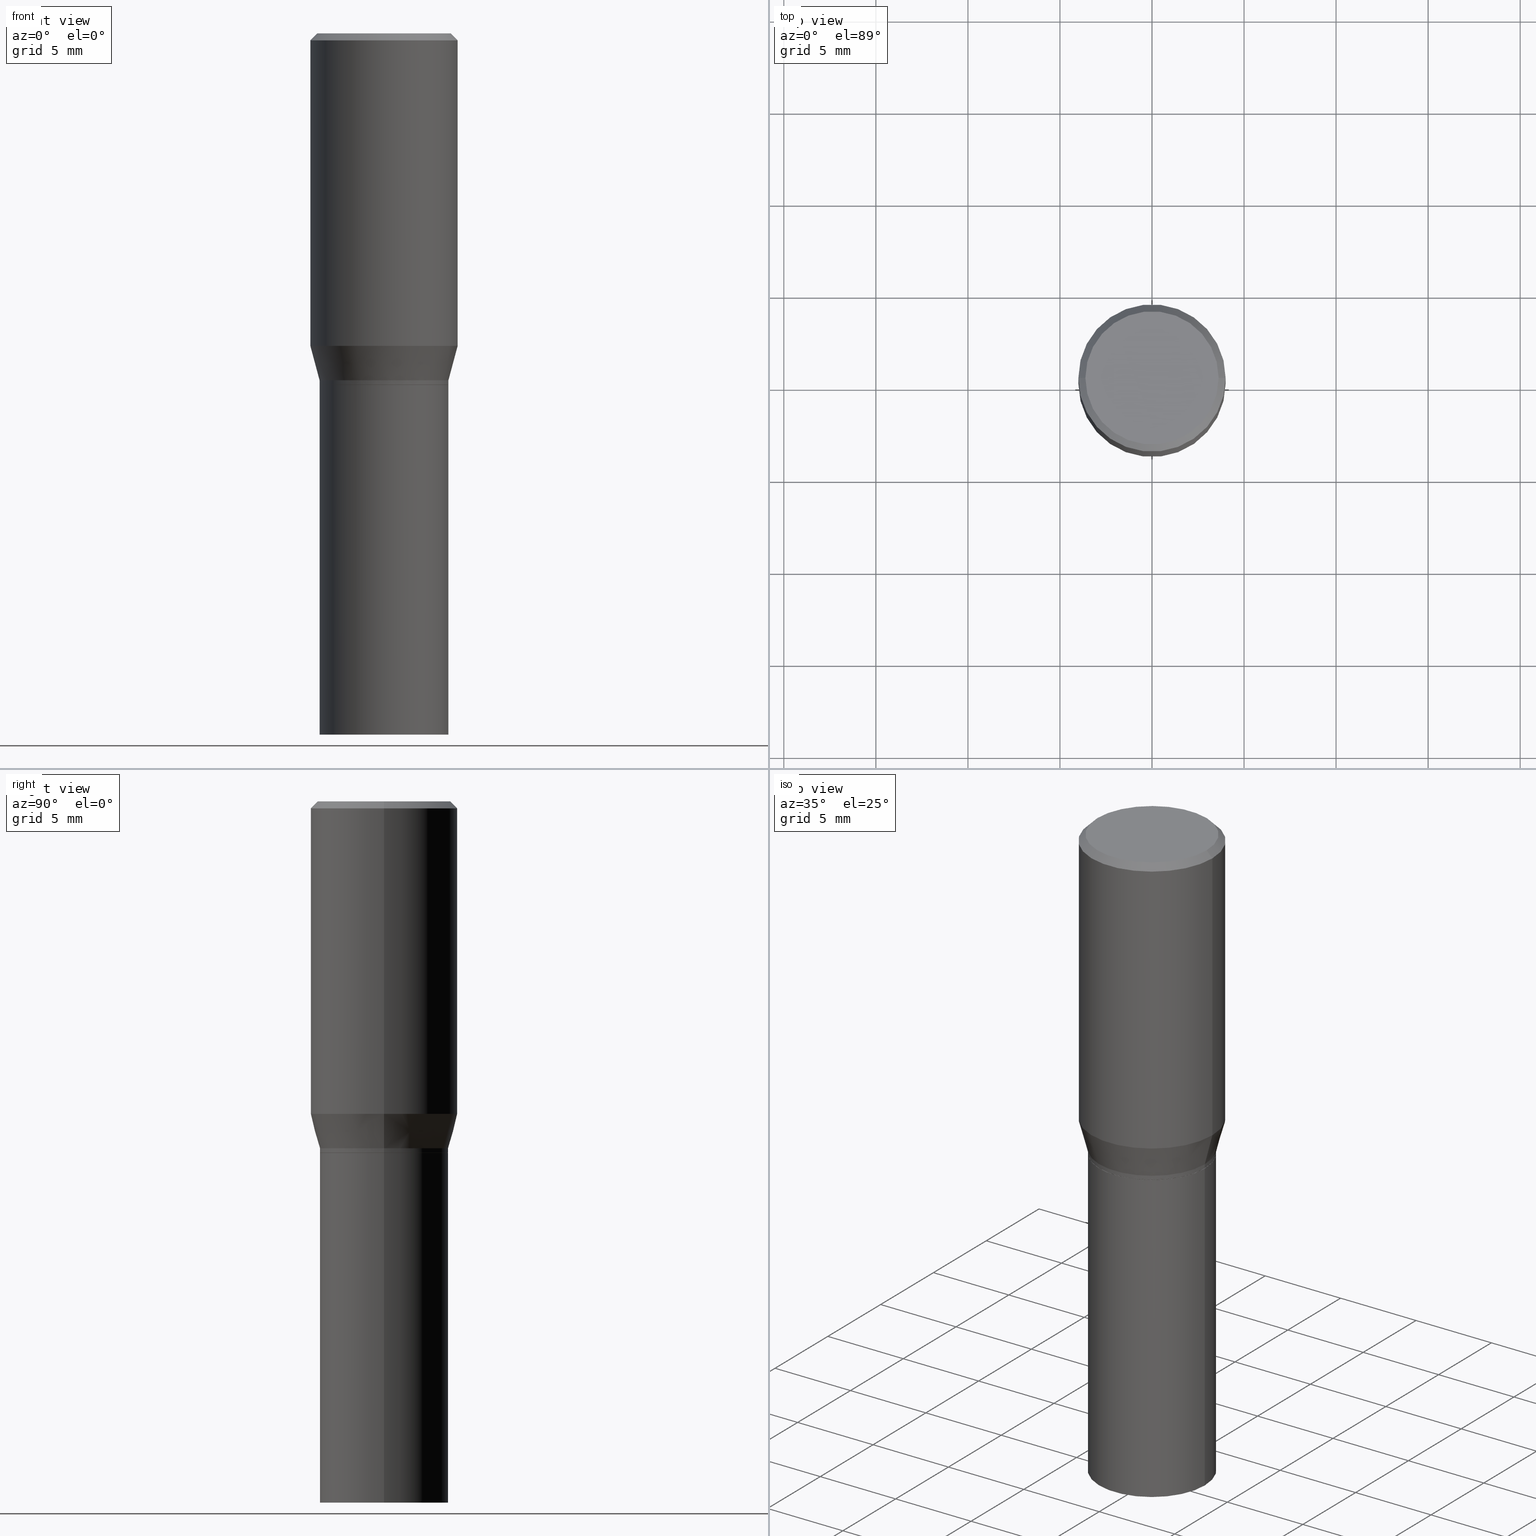
[diagram: canonical four-view strip — front | top / right | iso, engineering-drawing reading convention]
A machine part, canonical four-view strip (front | top / right | iso — engineering-drawing reading convention). The complete STEP part file that produces these views, byte-faithful:
ISO-10303-21;
HEADER;
FILE_DESCRIPTION (( 'STEP AP203' ),
    '1' );
FILE_NAME ('48681.STEP',
    '2024-03-12T19:43:24',
    ( '' ),
    ( '' ),
    'SwSTEP 2.0',
    'SolidWorks 2023',
    '' );
FILE_SCHEMA (( 'CONFIG_CONTROL_DESIGN' ));
ENDSEC;

DATA;
#1 = PERSON_AND_ORGANIZATION ( #353, #173 ) ;
#2 = CIRCLE ( 'NONE', #464, 0.1378000000000000058 ) ;
#3 = ADVANCED_FACE ( 'NONE', ( #329 ), #56, .T. ) ;
#4 = VERTEX_POINT ( 'NONE', #419 ) ;
#5 = APPROVAL ( #196, 'UNSPECIFIED' ) ;
#6 = PERSON_AND_ORGANIZATION ( #353, #173 ) ;
#7 = ORIENTED_EDGE ( 'NONE', *, *, #97, .F. ) ;
#8 = FACE_OUTER_BOUND ( 'NONE', #316, .T. ) ;
#9 = AXIS2_PLACEMENT_3D ( 'NONE', #370, #215, #11 ) ;
#10 = EDGE_LOOP ( 'NONE', ( #368, #25 ) ) ;
#11 = DIRECTION ( 'NONE',  ( 1.000000000000000000, -6.982962677686267499E-15, 0.000000000000000000 ) ) ;
#12 = CARTESIAN_POINT ( 'NONE',  ( 0.1373000000000000054, -3.584354742456369967E-15, -0.7520000000000001128 ) ) ;
#13 = CARTESIAN_POINT ( 'NONE',  ( 1.814537854189371548E-29, -2.590679153421614242E-15, -0.7420000000000002149 ) ) ;
#14 = CYLINDRICAL_SURFACE ( 'NONE', #99, 0.1378000000000000336 ) ;
#15 = CIRCLE ( 'NONE', #233, 0.1424999999999999878 ) ;
#16 = DIRECTION ( 'NONE',  ( 1.000000000000000000, -6.982962677686267499E-15, 0.000000000000000000 ) ) ;
#17 = LINE ( 'NONE', #144, #34 ) ;
#18 = APPLICATION_CONTEXT ( 'configuration controlled 3d designs of mechanical parts and assemblies' ) ;
#19 = CARTESIAN_POINT ( 'NONE',  ( 5.413510571379637089E-45, -7.729058366967027209E-31, -2.213690298435891099E-16 ) ) ;
#20 = ADVANCED_FACE ( 'NONE', ( #393 ), #272, .T. ) ;
#21 = EDGE_LOOP ( 'NONE', ( #191, #402, #170, #466 ) ) ;
#22 = ORIENTED_EDGE ( 'NONE', *, *, #423, .F. ) ;
#23 =( LENGTH_UNIT ( ) NAMED_UNIT ( * ) SI_UNIT ( $, .METRE. ) );
#24 = CARTESIAN_POINT ( 'NONE',  ( 1.837769807848130011E-29, -2.623848226140623599E-15, -0.7515000000000000568 ) ) ;
#25 = ORIENTED_EDGE ( 'NONE', *, *, #371, .T. ) ;
#26 = CONICAL_SURFACE ( 'NONE', #67, 0.1575000000000000011, 0.7853981633974554954 ) ;
#27 = CARTESIAN_POINT ( 'NONE',  ( -0.1373000000000000054, -1.650018790611428101E-15, -0.7520000000000001128 ) ) ;
#28 = ORIENTED_EDGE ( 'NONE', *, *, #205, .F. ) ;
#29 = DIRECTION ( 'NONE',  ( -2.438088387897960049E-29, 3.491481338843145188E-15, 1.000000000000000000 ) ) ;
#30 = CARTESIAN_POINT ( 'NONE',  ( 1.814537854189371548E-29, -2.590679153421614242E-15, -0.7420000000000002149 ) ) ;
#31 = CARTESIAN_POINT ( 'NONE',  ( 1.838992542251222813E-29, -2.625593966810045497E-15, -0.7520000000000001128 ) ) ;
#32 = EDGE_CURVE ( 'NONE', #444, #450, #200, .T. ) ;
#33 = DATE_TIME_ROLE ( 'classification_date' ) ;
#34 = VECTOR ( 'NONE', #110, 39.37007874015748143 ) ;
#35 = ORIENTED_EDGE ( 'NONE', *, *, #317, .F. ) ;
#36 = PERSON_AND_ORGANIZATION_ROLE ( 'creator' ) ;
#37 = EDGE_CURVE ( 'NONE', #195, #4, #193, .T. ) ;
#38 = APPROVAL_ROLE ( '' ) ;
#39 = VECTOR ( 'NONE', #163, 39.37007874015748143 ) ;
#40 = ORIENTED_EDGE ( 'NONE', *, *, #203, .F. ) ;
#41 = APPLICATION_CONTEXT ( 'configuration controlled 3d designs of mechanical parts and assemblies' ) ;
#42 = VERTEX_POINT ( 'NONE', #435 ) ;
#43 = LOCAL_TIME ( 15, 43, 24.00000000000000000, #275 ) ;
#44 = DESIGN_CONTEXT ( 'detailed design', #41, 'design' ) ;
#45 = EDGE_CURVE ( 'NONE', #4, #195, #256, .T. ) ;
#46 = DIRECTION ( 'NONE',  ( -0.2588190451025222938, 5.211531920934555775E-15, 0.9659258262890678681 ) ) ;
#47 = AXIS2_PLACEMENT_3D ( 'NONE', #263, #341, #420 ) ;
#48 = DIRECTION ( 'NONE',  ( -2.445468806185136597E-29, 3.491481338843145583E-15, 1.000000000000000000 ) ) ;
#49 = EDGE_LOOP ( 'NONE', ( #138, #103, #154, #280 ) ) ;
#50 = DIRECTION ( 'NONE',  ( 1.000000000000000000, -6.982962677686266711E-15, 0.000000000000000000 ) ) ;
#51 = DIRECTION ( 'NONE',  ( 1.000000000000000000, -6.982962677686267499E-15, 4.876176775795935793E-29 ) ) ;
#52 = CYLINDRICAL_SURFACE ( 'NONE', #391, 0.1378000000000000058 ) ;
#53 = EDGE_LOOP ( 'NONE', ( #381, #241 ) ) ;
#54 = DIRECTION ( 'NONE',  ( -2.445468806185136877E-29, 3.491481338843145188E-15, 1.000000000000000000 ) ) ;
#55 = ADVANCED_BREP_SHAPE_REPRESENTATION ( '48681', ( #448, #445, #165 ), #279 ) ;
#56 = CONICAL_SURFACE ( 'NONE', #114, 0.1377999999999999781, 0.2617993877991510177 ) ;
#57 = PLANE ( 'NONE',  #148 ) ;
#58 = ORIENTED_EDGE ( 'NONE', *, *, #228, .T. ) ;
#59 = CARTESIAN_POINT ( 'NONE',  ( 0.1378000000000000613, -3.586100483125791470E-15, -0.7515000000000000568 ) ) ;
#60 = CARTESIAN_POINT ( 'NONE',  ( -0.1378000000000000058, -2.952280097659963937E-15, -0.7520000000000001128 ) ) ;
#61 = DIRECTION ( 'NONE',  ( 1.000000000000000000, -6.982962677686267499E-15, 4.876176775795935793E-29 ) ) ;
#62 = DIRECTION ( 'NONE',  ( -2.445468806185136597E-29, 3.491481338843145583E-15, 1.000000000000000000 ) ) ;
#63 = EDGE_CURVE ( 'NONE', #100, #42, #442, .T. ) ;
#64 = COORDINATED_UNIVERSAL_TIME_OFFSET ( 5, 0, .BEHIND. ) ;
#65 = ORIENTED_EDGE ( 'NONE', *, *, #250, .F. ) ;
#66 = DATE_AND_TIME ( #348, #461 ) ;
#67 = AXIS2_PLACEMENT_3D ( 'NONE', #78, #75, #169 ) ;
#68 = PERSON_AND_ORGANIZATION ( #353, #173 ) ;
#69 = ADVANCED_FACE ( 'NONE', ( #453 ), #57, .F. ) ;
#70 = CARTESIAN_POINT ( 'NONE',  ( 0.000000000000000000, 0.000000000000000000, 0.000000000000000000 ) ) ;
#71 = ORIENTED_EDGE ( 'NONE', *, *, #37, .T. ) ;
#72 = EDGE_LOOP ( 'NONE', ( #327, #350, #79, #71 ) ) ;
#73 = ADVANCED_FACE ( 'NONE', ( #443 ), #52, .T. ) ;
#74 = DIRECTION ( 'NONE',  ( 1.000000000000000000, -6.982962677686265922E-15, 0.000000000000000000 ) ) ;
#75 = DIRECTION ( 'NONE',  ( 2.445468806185136597E-29, -3.491481338843145583E-15, -1.000000000000000000 ) ) ;
#76 = DIRECTION ( 'NONE',  ( -2.445468806185136877E-29, 3.491481338843145188E-15, 1.000000000000000000 ) ) ;
#77 = VECTOR ( 'NONE', #46, 39.37007874015748143 ) ;
#78 = CARTESIAN_POINT ( 'NONE',  ( 3.668203209277705088E-31, -5.237222008264718399E-17, -0.01499999999999999944 ) ) ;
#79 = ORIENTED_EDGE ( 'NONE', *, *, #266, .T. ) ;
#80 = DIRECTION ( 'NONE',  ( -0.7071067811865526798, 2.468850131082310309E-15, -0.7071067811865424657 ) ) ;
#81 = CIRCLE ( 'NONE', #237, 0.1424999999999999878 ) ;
#82 = CARTESIAN_POINT ( 'NONE',  ( 0.000000000000000000, 0.000000000000000000, 0.000000000000000000 ) ) ;
#83 = DIRECTION ( 'NONE',  ( 1.000000000000000000, -6.982962677686265922E-15, 0.000000000000000000 ) ) ;
#84 = ORIENTED_EDGE ( 'NONE', *, *, #45, .T. ) ;
#85 = VECTOR ( 'NONE', #188, 39.37007874015748143 ) ;
#86 = DIRECTION ( 'NONE',  ( 1.000000000000000000, -6.982962677686266711E-15, 4.874020801377837404E-29 ) ) ;
#87 = ORIENTED_EDGE ( 'NONE', *, *, #129, .T. ) ;
#88 = DIRECTION ( 'NONE',  ( 2.438088387897960049E-29, -3.491481338843145188E-15, -1.000000000000000000 ) ) ;
#89 = CYLINDRICAL_SURFACE ( 'NONE', #47, 0.1575000000000000289 ) ;
#90 = CARTESIAN_POINT ( 'NONE',  ( 1.814537854189371548E-29, -2.590679153421614242E-15, -0.7420000000000002149 ) ) ;
#91 = EDGE_CURVE ( 'NONE', #450, #444, #2, .T. ) ;
#92 = PERSON_AND_ORGANIZATION_ROLE ( 'design_owner' ) ;
#93 = DIRECTION ( 'NONE',  ( 0.000000000000000000, 0.000000000000000000, 1.000000000000000000 ) ) ;
#94 = AXIS2_PLACEMENT_3D ( 'NONE', #403, #253, #83 ) ;
#95 = PERSON_AND_ORGANIZATION ( #353, #173 ) ;
#96 = CIRCLE ( 'NONE', #160, 0.1373000000000000054 ) ;
#97 = EDGE_CURVE ( 'NONE', #450, #418, #149, .T. ) ;
#98 = EDGE_LOOP ( 'NONE', ( #440, #336, #135, #438 ) ) ;
#99 = AXIS2_PLACEMENT_3D ( 'NONE', #82, #407, #51 ) ;
#100 = VERTEX_POINT ( 'NONE', #178 ) ;
#101 = CARTESIAN_POINT ( 'NONE',  ( 3.668203209277705088E-31, -5.237222008264718399E-17, -0.01499999999999999944 ) ) ;
#102 = CARTESIAN_POINT ( 'NONE',  ( 0.000000000000000000, 0.000000000000000000, 0.000000000000000000 ) ) ;
#103 = ORIENTED_EDGE ( 'NONE', *, *, #423, .T. ) ;
#104 = ORIENTED_EDGE ( 'NONE', *, *, #32, .T. ) ;
#105 = CARTESIAN_POINT ( 'NONE',  ( -0.1575000000000000011, -7.407157829009734663E-17, -0.01499999999999999944 ) ) ;
#106 = CLOSED_SHELL ( 'NONE', ( #409, #364, #73, #145 ) ) ;
#107 = LINE ( 'NONE', #204, #288 ) ;
#108 = VECTOR ( 'NONE', #142, 39.37007874015748143 ) ;
#109 = CARTESIAN_POINT ( 'NONE',  ( -0.1377999999999999781, -1.413213504431950829E-15, -0.7420000000000002149 ) ) ;
#110 = DIRECTION ( 'NONE',  ( -2.445468806185136877E-29, 3.491481338843145188E-15, 1.000000000000000000 ) ) ;
#111 = APPROVAL_PERSON_ORGANIZATION ( #194, #249, #199 ) ;
#112 =( NAMED_UNIT ( * ) PLANE_ANGLE_UNIT ( ) SI_UNIT ( $, .RADIAN. ) );
#113 = EDGE_CURVE ( 'NONE', #244, #433, #295, .T. ) ;
#114 = AXIS2_PLACEMENT_3D ( 'NONE', #13, #141, #462 ) ;
#115 = CONICAL_SURFACE ( 'NONE', #143, 0.1373000000000000054, 0.7853981633974653764 ) ;
#116 = CARTESIAN_POINT ( 'NONE',  ( 0.000000000000000000, 0.000000000000000000, 0.000000000000000000 ) ) ;
#117 = ORIENTED_EDGE ( 'NONE', *, *, #281, .F. ) ;
#118 = FACE_OUTER_BOUND ( 'NONE', #21, .T. ) ;
#119 = DIRECTION ( 'NONE',  ( -2.445468806185136597E-29, 3.491481338843145583E-15, 1.000000000000000000 ) ) ;
#120 = AXIS2_PLACEMENT_3D ( 'NONE', #231, #88, #346 ) ;
#121 = APPROVAL_STATUS ( 'not_yet_approved' ) ;
#122 = ADVANCED_FACE ( 'NONE', ( #183 ), #26, .T. ) ;
#123 = DIRECTION ( 'NONE',  ( -1.000000000000000000, 6.982962677686265922E-15, 0.000000000000000000 ) ) ;
#124 = COORDINATED_UNIVERSAL_TIME_OFFSET ( 5, 0, .BEHIND. ) ;
#125 = CC_DESIGN_APPROVAL ( #249, ( #319 ) ) ;
#126 = AXIS2_PLACEMENT_3D ( 'NONE', #102, #243, #61 ) ;
#127 = EDGE_CURVE ( 'NONE', #42, #100, #309, .T. ) ;
#128 = ORIENTED_EDGE ( 'NONE', *, *, #137, .F. ) ;
#129 = EDGE_CURVE ( 'NONE', #202, #304, #132, .T. ) ;
#130 = EDGE_LOOP ( 'NONE', ( #400, #285, #150, #222 ) ) ;
#131 = FACE_OUTER_BOUND ( 'NONE', #98, .T. ) ;
#132 = CIRCLE ( 'NONE', #240, 0.1377999999999999781 ) ;
#133 = VERTEX_POINT ( 'NONE', #299 ) ;
#134 = PRODUCT_DEFINITION_SHAPE ( 'NONE', 'NONE',  #184 ) ;
#135 = ORIENTED_EDGE ( 'NONE', *, *, #281, .T. ) ;
#136 = FACE_OUTER_BOUND ( 'NONE', #10, .T. ) ;
#137 = EDGE_CURVE ( 'NONE', #433, #244, #428, .T. ) ;
#138 = ORIENTED_EDGE ( 'NONE', *, *, #465, .F. ) ;
#139 = FACE_OUTER_BOUND ( 'NONE', #322, .T. ) ;
#140 = CARTESIAN_POINT ( 'NONE',  ( 0.000000000000000000, 0.000000000000000000, 0.000000000000000000 ) ) ;
#141 = DIRECTION ( 'NONE',  ( -2.445468806185136597E-29, 3.491481338843145583E-15, 1.000000000000000000 ) ) ;
#142 = DIRECTION ( 'NONE',  ( -2.445468806185136877E-29, 3.491481338843145188E-15, 1.000000000000000000 ) ) ;
#143 = AXIS2_PLACEMENT_3D ( 'NONE', #441, #212, #50 ) ;
#144 = CARTESIAN_POINT ( 'NONE',  ( -0.1378000000000000058, 9.791278898774180975E-16, -6.778292554371260034E-30 ) ) ;
#145 = ADVANCED_FACE ( 'NONE', ( #311 ), #277, .F. ) ;
#146 = DIRECTION ( 'NONE',  ( -2.445468806185136597E-29, 3.491481338843145583E-15, 1.000000000000000000 ) ) ;
#147 = DIRECTION ( 'NONE',  ( 1.000000000000000000, -6.982962677686267499E-15, 4.876176775795935232E-29 ) ) ;
#148 = AXIS2_PLACEMENT_3D ( 'NONE', #220, #208, #366 ) ;
#149 = LINE ( 'NONE', #339, #85 ) ;
#150 = ORIENTED_EDGE ( 'NONE', *, *, #63, .F. ) ;
#151 = CARTESIAN_POINT ( 'NONE',  ( -0.1378000000000000058, -2.952280097659963937E-15, -1.500000000000000222 ) ) ;
#152 = VECTOR ( 'NONE', #80, 39.37007874015748143 ) ;
#153 = SHAPE_DEFINITION_REPRESENTATION ( #134, #55 ) ;
#154 = ORIENTED_EDGE ( 'NONE', *, *, #203, .T. ) ;
#155 = DIRECTION ( 'NONE',  ( 2.445468806185136597E-29, -3.491481338843145583E-15, -1.000000000000000000 ) ) ;
#156 = PERSON_AND_ORGANIZATION ( #353, #173 ) ;
#157 = CC_DESIGN_PERSON_AND_ORGANIZATION_ASSIGNMENT ( #6, #36, ( #319 ) ) ;
#158 = AXIS2_PLACEMENT_3D ( 'NONE', #101, #274, #255 ) ;
#159 = ADVANCED_FACE ( 'NONE', ( #168 ), #115, .T. ) ;
#160 = AXIS2_PLACEMENT_3D ( 'NONE', #31, #294, #218 ) ;
#161 = APPLICATION_PROTOCOL_DEFINITION ( 'international standard', 'config_control_design', 1994, #18 ) ;
#162 = ORIENTED_EDGE ( 'NONE', *, *, #127, .T. ) ;
#163 = DIRECTION ( 'NONE',  ( 0.2588190451025222938, 1.565188264969614671E-15, 0.9659258262890678681 ) ) ;
#164 = ORIENTED_EDGE ( 'NONE', *, *, #264, .F. ) ;
#165 = AXIS2_PLACEMENT_3D ( 'NONE', #70, #93, #278 ) ;
#166 = VERTEX_POINT ( 'NONE', #248 ) ;
#167 = AXIS2_PLACEMENT_3D ( 'NONE', #457, #261, #361 ) ;
#168 = FACE_OUTER_BOUND ( 'NONE', #49, .T. ) ;
#169 = DIRECTION ( 'NONE',  ( -1.000000000000000000, 6.982962677686265922E-15, 0.000000000000000000 ) ) ;
#170 = ORIENTED_EDGE ( 'NONE', *, *, #45, .F. ) ;
#171 = CARTESIAN_POINT ( 'NONE',  ( 1.838992542251222813E-29, -2.625593966810045497E-15, -0.7520000000000001128 ) ) ;
#172 = LINE ( 'NONE', #333, #216 ) ;
#173 = ORGANIZATION ( 'UNSPECIFIED', 'UNSPECIFIED', '' ) ;
#174 = LINE ( 'NONE', #252, #77 ) ;
#175 = CONICAL_SURFACE ( 'NONE', #372, 0.1373000000000000054, 0.7853981633974653764 ) ;
#176 = EDGE_CURVE ( 'NONE', #42, #195, #360, .T. ) ;
#177 = CARTESIAN_POINT ( 'NONE',  ( 1.838992542251222813E-29, -2.625593966810045497E-15, -0.7520000000000001128 ) ) ;
#178 = CARTESIAN_POINT ( 'NONE',  ( 0.1575000000000000289, -3.433797175877450400E-15, -0.6684785990908935771 ) ) ;
#179 = DIRECTION ( 'NONE',  ( -2.445468806185136877E-29, 3.491481338843145188E-15, 1.000000000000000000 ) ) ;
#180 = DIRECTION ( 'NONE',  ( -2.445468806185136597E-29, 3.491481338843145583E-15, 1.000000000000000000 ) ) ;
#181 = PLANE ( 'NONE',  #421 ) ;
#182 = AXIS2_PLACEMENT_3D ( 'NONE', #225, #267, #269 ) ;
#183 = FACE_OUTER_BOUND ( 'NONE', #459, .T. ) ;
#184 = PRODUCT_DEFINITION ( 'UNKNOWN', '', #319, #44 ) ;
#185 = DIRECTION ( 'NONE',  ( -2.445468806185136597E-29, 3.491481338843145583E-15, 1.000000000000000000 ) ) ;
#186 = PRODUCT_RELATED_PRODUCT_CATEGORY ( 'detail', '', ( #214 ) ) ;
#187 = LINE ( 'NONE', #27, #379 ) ;
#188 = DIRECTION ( 'NONE',  ( -2.445468806185136877E-29, 3.491481338843145188E-15, 1.000000000000000000 ) ) ;
#189 = DATE_AND_TIME ( #313, #389 ) ;
#190 = CC_DESIGN_APPROVAL ( #236, ( #184 ) ) ;
#191 = ORIENTED_EDGE ( 'NONE', *, *, #63, .T. ) ;
#192 = EDGE_CURVE ( 'NONE', #304, #100, #324, .T. ) ;
#193 = CIRCLE ( 'NONE', #383, 0.1575000000000000011 ) ;
#194 = PERSON_AND_ORGANIZATION ( #353, #173 ) ;
#195 = VERTEX_POINT ( 'NONE', #105 ) ;
#196 = APPROVAL_STATUS ( 'not_yet_approved' ) ;
#197 = APPROVAL_DATE_TIME ( #189, #249 ) ;
#198 = UNCERTAINTY_MEASURE_WITH_UNIT (LENGTH_MEASURE( 1.000000000000000082E-05 ), #463, 'distance_accuracy_value', 'NONE');
#199 = APPROVAL_ROLE ( '' ) ;
#200 = CIRCLE ( 'NONE', #182, 0.1378000000000000058 ) ;
#201 = ORIENTED_EDGE ( 'NONE', *, *, #127, .F. ) ;
#202 = VERTEX_POINT ( 'NONE', #109 ) ;
#203 = EDGE_CURVE ( 'NONE', #166, #433, #401, .T. ) ;
#204 = CARTESIAN_POINT ( 'NONE',  ( 0.1575000000000000289, -1.099816621735587283E-15, 7.679978421878599434E-30 ) ) ;
#205 = EDGE_CURVE ( 'NONE', #202, #42, #174, .T. ) ;
#206 = AXIS2_PLACEMENT_3D ( 'NONE', #374, #180, #16 ) ;
#207 = CARTESIAN_POINT ( 'NONE',  ( 0.1378000000000000336, -9.622522569851678714E-16, 6.719371597046801339E-30 ) ) ;
#208 = DIRECTION ( 'NONE',  ( -2.438088387897960049E-29, 3.491481338843145188E-15, 1.000000000000000000 ) ) ;
#209 = CARTESIAN_POINT ( 'NONE',  ( 9.950721815702929274E-16, 0.1424999999999999878, -6.082206057069428675E-16 ) ) ;
#210 = ADVANCED_FACE ( 'NONE', ( #131 ), #14, .T. ) ;
#211 = DIRECTION ( 'NONE',  ( 1.000000000000000000, -6.982962677686267499E-15, 4.876176775795935793E-29 ) ) ;
#212 = DIRECTION ( 'NONE',  ( -2.445468806185136597E-29, 3.491481338843145583E-15, 1.000000000000000000 ) ) ;
#213 = ADVANCED_FACE ( 'NONE', ( #139 ), #175, .T. ) ;
#214 = PRODUCT ( '48681', '48681', '', ( #308 ) ) ;
#215 = DIRECTION ( 'NONE',  ( -2.445468806185136597E-29, 3.491481338843145583E-15, 1.000000000000000000 ) ) ;
#216 = VECTOR ( 'NONE', #283, 39.37007874015748143 ) ;
#217 = CONICAL_SURFACE ( 'NONE', #298, 0.1377999999999999781, 0.2617993877991510177 ) ;
#218 = DIRECTION ( 'NONE',  ( 1.000000000000000000, -6.982962677686266711E-15, 0.000000000000000000 ) ) ;
#219 = ORIENTED_EDGE ( 'NONE', *, *, #91, .F. ) ;
#220 = CARTESIAN_POINT ( 'NONE',  ( 1.838992542251222813E-29, -2.625593966810045497E-15, -0.7520000000000001128 ) ) ;
#221 = CARTESIAN_POINT ( 'NONE',  ( 5.413510571379637089E-45, -7.729058366967027209E-31, -2.213690298435891099E-16 ) ) ;
#222 = ORIENTED_EDGE ( 'NONE', *, *, #192, .F. ) ;
#223 = CARTESIAN_POINT ( 'NONE',  ( 0.1378000000000000058, -6.199474265249886443E-15, -1.500000000000000222 ) ) ;
#224 = EDGE_LOOP ( 'NONE', ( #219, #357 ) ) ;
#225 = CARTESIAN_POINT ( 'NONE',  ( 3.668203209277704895E-29, -5.237222008264718177E-15, -1.500000000000000222 ) ) ;
#226 = FACE_OUTER_BOUND ( 'NONE', #130, .T. ) ;
#227 =( NAMED_UNIT ( * ) SI_UNIT ( $, .STERADIAN. ) SOLID_ANGLE_UNIT ( ) );
#228 = EDGE_CURVE ( 'NONE', #100, #4, #107, .T. ) ;
#229 = ORIENTED_EDGE ( 'NONE', *, *, #91, .T. ) ;
#230 = APPROVAL_PERSON_ORGANIZATION ( #68, #5, #38 ) ;
#231 = CARTESIAN_POINT ( 'NONE',  ( 9.622522569851860152E-16, 0.1377999999999973968, -0.7520000000000005569 ) ) ;
#232 = APPROVAL_ROLE ( '' ) ;
#233 = AXIS2_PLACEMENT_3D ( 'NONE', #221, #334, #86 ) ;
#234 = CALENDAR_DATE ( 2024, 12, 3 ) ;
#235 = DATE_TIME_ROLE ( 'creation_date' ) ;
#236 = APPROVAL ( #121, 'UNSPECIFIED' ) ;
#237 = AXIS2_PLACEMENT_3D ( 'NONE', #19, #62, #338 ) ;
#238 = DATE_AND_TIME ( #234, #271 ) ;
#239 = ORIENTED_EDGE ( 'NONE', *, *, #465, .T. ) ;
#240 = AXIS2_PLACEMENT_3D ( 'NONE', #30, #385, #342 ) ;
#241 = ORIENTED_EDGE ( 'NONE', *, *, #250, .T. ) ;
#242 = CC_DESIGN_PERSON_AND_ORGANIZATION_ASSIGNMENT ( #95, #92, ( #214 ) ) ;
#243 = DIRECTION ( 'NONE',  ( -2.445468806185136597E-29, 3.491481338843145583E-15, 1.000000000000000000 ) ) ;
#244 = VERTEX_POINT ( 'NONE', #449 ) ;
#245 = CC_DESIGN_DATE_AND_TIME_ASSIGNMENT ( #395, #33, ( #451 ) ) ;
#246 = DIRECTION ( 'NONE',  ( -2.445468806185136597E-29, 3.491481338843145583E-15, 1.000000000000000000 ) ) ;
#247 = EDGE_LOOP ( 'NONE', ( #229, #380, #35, #7 ) ) ;
#248 = CARTESIAN_POINT ( 'NONE',  ( 0.1373000000000000054, -3.584354742456369967E-15, -0.7520000000000001128 ) ) ;
#249 = APPROVAL ( #352, 'UNSPECIFIED' ) ;
#250 = EDGE_CURVE ( 'NONE', #343, #418, #362, .T. ) ;
#251 = ORIENTED_EDGE ( 'NONE', *, *, #411, .T. ) ;
#252 = CARTESIAN_POINT ( 'NONE',  ( -0.1377999999999999781, -1.611551263544196737E-15, -0.7420000000000002149 ) ) ;
#253 = DIRECTION ( 'NONE',  ( -2.445468806185136597E-29, 3.491481338843145583E-15, 1.000000000000000000 ) ) ;
#254 = CLOSED_SHELL ( 'NONE', ( #335, #213, #122, #386, #408, #3, #351, #20, #284, #69, #159, #210 ) ) ;
#255 = DIRECTION ( 'NONE',  ( 1.000000000000000000, -6.982962677686265922E-15, 0.000000000000000000 ) ) ;
#256 = CIRCLE ( 'NONE', #158, 0.1575000000000000011 ) ;
#257 = DIRECTION ( 'NONE',  ( 1.000000000000000000, -6.982962677686267499E-15, 0.000000000000000000 ) ) ;
#258 = CARTESIAN_POINT ( 'NONE',  ( -0.1373000000000000054, -1.647369563437316505E-15, -0.7520000000000001128 ) ) ;
#259 = VERTEX_POINT ( 'NONE', #405 ) ;
#260 = CARTESIAN_POINT ( 'NONE',  ( 0.000000000000000000, 0.000000000000000000, 0.000000000000000000 ) ) ;
#261 = DIRECTION ( 'NONE',  ( -2.445468806185136597E-29, 3.491481338843145583E-15, 1.000000000000000000 ) ) ;
#262 = DIRECTION ( 'NONE',  ( 1.000000000000000000, -6.982962677686265922E-15, 0.000000000000000000 ) ) ;
#263 = CARTESIAN_POINT ( 'NONE',  ( 0.000000000000000000, 0.000000000000000000, 0.000000000000000000 ) ) ;
#264 = EDGE_CURVE ( 'NONE', #304, #202, #303, .T. ) ;
#265 = DIRECTION ( 'NONE',  ( -2.445468806185136597E-29, 3.491481338843145583E-15, 1.000000000000000000 ) ) ;
#266 = EDGE_CURVE ( 'NONE', #259, #195, #289, .T. ) ;
#267 = DIRECTION ( 'NONE',  ( -2.445468806185136597E-29, 3.491481338843145583E-15, 1.000000000000000000 ) ) ;
#268 = PERSON_AND_ORGANIZATION_ROLE ( 'design_supplier' ) ;
#269 = DIRECTION ( 'NONE',  ( 1.000000000000000000, -6.982962677686265922E-15, 0.000000000000000000 ) ) ;
#270 = CALENDAR_DATE ( 2024, 12, 3 ) ;
#271 = LOCAL_TIME ( 15, 43, 24.00000000000000000, #64 ) ;
#272 = CONICAL_SURFACE ( 'NONE', #282, 0.1575000000000000011, 0.7853981633974554954 ) ;
#273 = PERSON_AND_ORGANIZATION ( #353, #173 ) ;
#274 = DIRECTION ( 'NONE',  ( -2.445468806185136597E-29, 3.491481338843145583E-15, 1.000000000000000000 ) ) ;
#275 = COORDINATED_UNIVERSAL_TIME_OFFSET ( 5, 0, .BEHIND. ) ;
#276 = ORIENTED_EDGE ( 'NONE', *, *, #97, .T. ) ;
#277 = PLANE ( 'NONE',  #120 ) ;
#278 = DIRECTION ( 'NONE',  ( 1.000000000000000000, 0.000000000000000000, 0.000000000000000000 ) ) ;
#279 =( GEOMETRIC_REPRESENTATION_CONTEXT ( 3 ) GLOBAL_UNCERTAINTY_ASSIGNED_CONTEXT ( ( #198 ) ) GLOBAL_UNIT_ASSIGNED_CONTEXT ( ( #463, #112, #227 ) ) REPRESENTATION_CONTEXT ( 'NONE', 'WORKASPACE' ) );
#280 = ORIENTED_EDGE ( 'NONE', *, *, #113, .F. ) ;
#281 = EDGE_CURVE ( 'NONE', #433, #304, #291, .T. ) ;
#282 = AXIS2_PLACEMENT_3D ( 'NONE', #388, #155, #123 ) ;
#283 = DIRECTION ( 'NONE',  ( 0.7071067811865526798, -7.319954787623273400E-15, -0.7071067811865424657 ) ) ;
#284 = ADVANCED_FACE ( 'NONE', ( #136 ), #328, .F. ) ;
#285 = ORIENTED_EDGE ( 'NONE', *, *, #205, .T. ) ;
#286 = DIRECTION ( 'NONE',  ( 1.000000000000000000, -6.982962677686266711E-15, 0.000000000000000000 ) ) ;
#287 = CARTESIAN_POINT ( 'NONE',  ( -0.1575000000000000011, 1.047444401652939809E-15, -0.01499999999999999944 ) ) ;
#288 = VECTOR ( 'NONE', #76, 39.37007874015748143 ) ;
#289 = LINE ( 'NONE', #287, #152 ) ;
#290 = CC_DESIGN_PERSON_AND_ORGANIZATION_ASSIGNMENT ( #394, #432, ( #184 ) ) ;
#291 = LINE ( 'NONE', #207, #404 ) ;
#292 = DIRECTION ( 'NONE',  ( -0.7071067811865595631, 7.493145998870398336E-15, 0.7071067811865354713 ) ) ;
#293 = EDGE_CURVE ( 'NONE', #133, #4, #172, .T. ) ;
#294 = DIRECTION ( 'NONE',  ( -2.445468806185136597E-29, 3.491481338843145583E-15, 1.000000000000000000 ) ) ;
#295 = CIRCLE ( 'NONE', #349, 0.1378000000000000613 ) ;
#296 = EDGE_LOOP ( 'NONE', ( #367, #22 ) ) ;
#297 = CARTESIAN_POINT ( 'NONE',  ( 3.576687321579069994E-29, -5.368277968210015545E-15, -1.500000000000000222 ) ) ;
#298 = AXIS2_PLACEMENT_3D ( 'NONE', #90, #384, #382 ) ;
#299 = CARTESIAN_POINT ( 'NONE',  ( 0.1424999999999999878, -1.055260809707053708E-15, -2.213690298435819608E-16 ) ) ;
#300 = LINE ( 'NONE', #415, #314 ) ;
#301 = LOCAL_TIME ( 15, 43, 24.00000000000000000, #124 ) ;
#302 = LENGTH_MEASURE_WITH_UNIT ( LENGTH_MEASURE( 0.02539999999999999897 ), #23 );
#303 = CIRCLE ( 'NONE', #9, 0.1377999999999999781 ) ;
#304 = VERTEX_POINT ( 'NONE', #331 ) ;
#305 = SECURITY_CLASSIFICATION_LEVEL ( 'unclassified' ) ;
#306 = DIMENSIONAL_EXPONENTS ( 1.000000000000000000, 0.000000000000000000, 0.000000000000000000, 0.000000000000000000, 0.000000000000000000, 0.000000000000000000, 0.000000000000000000 ) ;
#307 = DIRECTION ( 'NONE',  ( 1.000000000000000000, -6.982962677686265922E-15, 0.000000000000000000 ) ) ;
#308 = MECHANICAL_CONTEXT ( 'NONE', #18, 'mechanical' ) ;
#309 = CIRCLE ( 'NONE', #332, 0.1575000000000000289 ) ;
#310 = PERSON_AND_ORGANIZATION_ROLE ( 'classification_officer' ) ;
#311 = FACE_OUTER_BOUND ( 'NONE', #53, .T. ) ;
#312 = AXIS2_PLACEMENT_3D ( 'NONE', #116, #146, #422 ) ;
#313 = CALENDAR_DATE ( 2024, 12, 3 ) ;
#314 = VECTOR ( 'NONE', #179, 39.37007874015748143 ) ;
#315 = EDGE_CURVE ( 'NONE', #444, #343, #17, .T. ) ;
#316 = EDGE_LOOP ( 'NONE', ( #358, #323, #164, #117 ) ) ;
#317 = EDGE_CURVE ( 'NONE', #418, #343, #321, .T. ) ;
#318 = DIRECTION ( 'NONE',  ( -2.445468806185136597E-29, 3.491481338843145583E-15, 1.000000000000000000 ) ) ;
#319 = PRODUCT_DEFINITION_FORMATION_WITH_SPECIFIED_SOURCE ( 'ANY', '', #214, .NOT_KNOWN. ) ;
#320 = ORIENTED_EDGE ( 'NONE', *, *, #192, .T. ) ;
#321 = CIRCLE ( 'NONE', #392, 0.1378000000000000058 ) ;
#322 = EDGE_LOOP ( 'NONE', ( #251, #239, #128, #40 ) ) ;
#323 = ORIENTED_EDGE ( 'NONE', *, *, #447, .T. ) ;
#324 = LINE ( 'NONE', #439, #39 ) ;
#325 = CIRCLE ( 'NONE', #456, 0.1373000000000000054 ) ;
#326 = DIRECTION ( 'NONE',  ( 1.000000000000000000, -6.982962677686267499E-15, 0.000000000000000000 ) ) ;
#327 = ORIENTED_EDGE ( 'NONE', *, *, #293, .F. ) ;
#328 = PLANE ( 'NONE',  #434 ) ;
#329 = FACE_OUTER_BOUND ( 'NONE', #377, .T. ) ;
#330 = CC_DESIGN_APPROVAL ( #5, ( #451 ) ) ;
#331 = CARTESIAN_POINT ( 'NONE',  ( 0.1377999999999999781, -3.552931410406782114E-15, -0.7420000000000002149 ) ) ;
#332 = AXIS2_PLACEMENT_3D ( 'NONE', #363, #48, #326 ) ;
#333 = CARTESIAN_POINT ( 'NONE',  ( 0.1575000000000000011, -1.132900654731663450E-15, -0.01499999999999999944 ) ) ;
#334 = DIRECTION ( 'NONE',  ( -2.445468806185136597E-29, 3.491481338843145583E-15, 1.000000000000000000 ) ) ;
#335 = ADVANCED_FACE ( 'NONE', ( #8 ), #436, .T. ) ;
#336 = ORIENTED_EDGE ( 'NONE', *, *, #113, .T. ) ;
#337 = CC_DESIGN_PERSON_AND_ORGANIZATION_ASSIGNMENT ( #1, #310, ( #451 ) ) ;
#338 = DIRECTION ( 'NONE',  ( 1.000000000000000000, -6.982962677686266711E-15, 4.874020801377837404E-29 ) ) ;
#339 = CARTESIAN_POINT ( 'NONE',  ( 0.1378000000000000058, -9.622522569851676742E-16, 6.719371597046799937E-30 ) ) ;
#340 = VERTEX_POINT ( 'NONE', #258 ) ;
#341 = DIRECTION ( 'NONE',  ( -2.445468806185136597E-29, 3.491481338843145583E-15, 1.000000000000000000 ) ) ;
#342 = DIRECTION ( 'NONE',  ( 1.000000000000000000, -6.982962677686267499E-15, 0.000000000000000000 ) ) ;
#343 = VERTEX_POINT ( 'NONE', #60 ) ;
#344 = CC_DESIGN_DATE_AND_TIME_ASSIGNMENT ( #238, #235, ( #184 ) ) ;
#345 = FACE_OUTER_BOUND ( 'NONE', #247, .T. ) ;
#346 = DIRECTION ( 'NONE',  ( -1.000000000000000000, 6.982962677686265922E-15, -4.876176775795935793E-29 ) ) ;
#347 = FACE_OUTER_BOUND ( 'NONE', #224, .T. ) ;
#348 = CALENDAR_DATE ( 2024, 12, 3 ) ;
#349 = AXIS2_PLACEMENT_3D ( 'NONE', #24, #417, #257 ) ;
#350 = ORIENTED_EDGE ( 'NONE', *, *, #454, .F. ) ;
#351 = ADVANCED_FACE ( 'NONE', ( #413 ), #455, .T. ) ;
#352 = APPROVAL_STATUS ( 'not_yet_approved' ) ;
#353 = PERSON ( 'UNSPECIFIED', 'UNSPECIFIED', 'UNSPECIFIED', ('UNSPECIFIED'), ('UNSPECIFIED'), ('UNSPECIFIED') ) ;
#354 = DIRECTION ( 'NONE',  ( -2.445468806185136597E-29, 3.491481338843145583E-15, 1.000000000000000000 ) ) ;
#355 = APPROVAL_DATE_TIME ( #430, #5 ) ;
#356 = AXIS2_PLACEMENT_3D ( 'NONE', #260, #185, #147 ) ;
#357 = ORIENTED_EDGE ( 'NONE', *, *, #32, .F. ) ;
#358 = ORIENTED_EDGE ( 'NONE', *, *, #137, .T. ) ;
#359 = ORIENTED_EDGE ( 'NONE', *, *, #371, .F. ) ;
#360 = LINE ( 'NONE', #365, #108 ) ;
#361 = DIRECTION ( 'NONE',  ( 1.000000000000000000, -6.982962677686267499E-15, 0.000000000000000000 ) ) ;
#362 = CIRCLE ( 'NONE', #94, 0.1378000000000000058 ) ;
#363 = CARTESIAN_POINT ( 'NONE',  ( 1.634743561679119835E-29, -2.333980554141863708E-15, -0.6684785990908935771 ) ) ;
#364 = ADVANCED_FACE ( 'NONE', ( #347 ), #181, .F. ) ;
#365 = CARTESIAN_POINT ( 'NONE',  ( -0.1575000000000000289, 1.119104808822157998E-15, -7.747322767151478386E-30 ) ) ;
#366 = DIRECTION ( 'NONE',  ( 1.000000000000000000, -6.982962677686265922E-15, 4.876176775795935793E-29 ) ) ;
#367 = ORIENTED_EDGE ( 'NONE', *, *, #411, .F. ) ;
#368 = ORIENTED_EDGE ( 'NONE', *, *, #454, .T. ) ;
#369 = DIRECTION ( 'NONE',  ( -1.000000000000000000, 6.982962677686265922E-15, -4.876176775795935793E-29 ) ) ;
#370 = CARTESIAN_POINT ( 'NONE',  ( 1.814537854189371548E-29, -2.590679153421614242E-15, -0.7420000000000002149 ) ) ;
#371 = EDGE_CURVE ( 'NONE', #133, #259, #15, .T. ) ;
#372 = AXIS2_PLACEMENT_3D ( 'NONE', #171, #246, #286 ) ;
#373 = CARTESIAN_POINT ( 'NONE',  ( 1.838992542251222813E-29, -2.625593966810045497E-15, -0.7520000000000001128 ) ) ;
#374 = CARTESIAN_POINT ( 'NONE',  ( 1.634743561679119835E-29, -2.333980554141863708E-15, -0.6684785990908935771 ) ) ;
#375 = EDGE_LOOP ( 'NONE', ( #378, #104, #276, #65 ) ) ;
#376 = DIRECTION ( 'NONE',  ( 1.000000000000000000, -6.982962677686266711E-15, 0.000000000000000000 ) ) ;
#377 = EDGE_LOOP ( 'NONE', ( #28, #87, #320, #201 ) ) ;
#378 = ORIENTED_EDGE ( 'NONE', *, *, #315, .F. ) ;
#379 = VECTOR ( 'NONE', #292, 39.37007874015748143 ) ;
#380 = ORIENTED_EDGE ( 'NONE', *, *, #315, .T. ) ;
#381 = ORIENTED_EDGE ( 'NONE', *, *, #317, .T. ) ;
#382 = DIRECTION ( 'NONE',  ( 1.000000000000000000, -6.982962677686267499E-15, 0.000000000000000000 ) ) ;
#383 = AXIS2_PLACEMENT_3D ( 'NONE', #426, #354, #307 ) ;
#384 = DIRECTION ( 'NONE',  ( -2.445468806185136597E-29, 3.491481338843145583E-15, 1.000000000000000000 ) ) ;
#385 = DIRECTION ( 'NONE',  ( -2.445468806185136597E-29, 3.491481338843145583E-15, 1.000000000000000000 ) ) ;
#386 = ADVANCED_FACE ( 'NONE', ( #118 ), #89, .T. ) ;
#387 = ORIENTED_EDGE ( 'NONE', *, *, #176, .F. ) ;
#388 = CARTESIAN_POINT ( 'NONE',  ( 3.668203209277705088E-31, -5.237222008264718399E-17, -0.01499999999999999944 ) ) ;
#389 = LOCAL_TIME ( 15, 43, 24.00000000000000000, #427 ) ;
#390 = COORDINATED_UNIVERSAL_TIME_OFFSET ( 5, 0, .BEHIND. ) ;
#391 = AXIS2_PLACEMENT_3D ( 'NONE', #140, #406, #211 ) ;
#392 = AXIS2_PLACEMENT_3D ( 'NONE', #373, #318, #74 ) ;
#393 = FACE_OUTER_BOUND ( 'NONE', #72, .T. ) ;
#394 = PERSON_AND_ORGANIZATION ( #353, #173 ) ;
#395 = DATE_AND_TIME ( #270, #301 ) ;
#396 = CC_DESIGN_PERSON_AND_ORGANIZATION_ASSIGNMENT ( #156, #268, ( #319 ) ) ;
#397 = CALENDAR_DATE ( 2024, 12, 3 ) ;
#398 = ORIENTED_EDGE ( 'NONE', *, *, #266, .F. ) ;
#399 = VECTOR ( 'NONE', #410, 39.37007874015748143 ) ;
#400 = ORIENTED_EDGE ( 'NONE', *, *, #264, .T. ) ;
#401 = LINE ( 'NONE', #12, #399 ) ;
#402 = ORIENTED_EDGE ( 'NONE', *, *, #176, .T. ) ;
#403 = CARTESIAN_POINT ( 'NONE',  ( 1.838992542251222813E-29, -2.625593966810045497E-15, -0.7520000000000001128 ) ) ;
#404 = VECTOR ( 'NONE', #54, 39.37007874015748143 ) ;
#405 = CARTESIAN_POINT ( 'NONE',  ( -0.1424999999999999878, 1.021258291611616073E-15, -2.213690298435961603E-16 ) ) ;
#406 = DIRECTION ( 'NONE',  ( -2.445468806185136597E-29, 3.491481338843145583E-15, 1.000000000000000000 ) ) ;
#407 = DIRECTION ( 'NONE',  ( -2.445468806185136597E-29, 3.491481338843145583E-15, 1.000000000000000000 ) ) ;
#408 = ADVANCED_FACE ( 'NONE', ( #226 ), #217, .T. ) ;
#409 = ADVANCED_FACE ( 'NONE', ( #345 ), #460, .T. ) ;
#410 = DIRECTION ( 'NONE',  ( 0.7071067811865595631, -2.468850131082382884E-15, 0.7071067811865354713 ) ) ;
#411 = EDGE_CURVE ( 'NONE', #166, #340, #96, .T. ) ;
#412 = APPROVAL_PERSON_ORGANIZATION ( #273, #236, #232 ) ;
#413 = FACE_OUTER_BOUND ( 'NONE', #431, .T. ) ;
#414 = ORIENTED_EDGE ( 'NONE', *, *, #37, .F. ) ;
#415 = CARTESIAN_POINT ( 'NONE',  ( -0.1378000000000000336, 9.791278898774182947E-16, -6.778292554371261435E-30 ) ) ;
#416 = CARTESIAN_POINT ( 'NONE',  ( 0.1378000000000000058, -3.587846223795212974E-15, -0.7520000000000001128 ) ) ;
#417 = DIRECTION ( 'NONE',  ( -2.445468806185136597E-29, 3.491481338843145583E-15, 1.000000000000000000 ) ) ;
#418 = VERTEX_POINT ( 'NONE', #416 ) ;
#419 = CARTESIAN_POINT ( 'NONE',  ( 0.1575000000000000011, -1.152188841818234165E-15, -0.01499999999999999944 ) ) ;
#420 = DIRECTION ( 'NONE',  ( 1.000000000000000000, -6.982962677686267499E-15, 4.876176775795935232E-29 ) ) ;
#421 = AXIS2_PLACEMENT_3D ( 'NONE', #297, #29, #452 ) ;
#422 = DIRECTION ( 'NONE',  ( 1.000000000000000000, -6.982962677686267499E-15, 4.876176775795935793E-29 ) ) ;
#423 = EDGE_CURVE ( 'NONE', #340, #166, #325, .T. ) ;
#424 = APPLICATION_PROTOCOL_DEFINITION ( 'international standard', 'config_control_design', 1994, #41 ) ;
#425 = CC_DESIGN_SECURITY_CLASSIFICATION ( #451, ( #319 ) ) ;
#426 = CARTESIAN_POINT ( 'NONE',  ( 3.668203209277705088E-31, -5.237222008264718399E-17, -0.01499999999999999944 ) ) ;
#427 = COORDINATED_UNIVERSAL_TIME_OFFSET ( 5, 0, .BEHIND. ) ;
#428 = CIRCLE ( 'NONE', #167, 0.1378000000000000613 ) ;
#429 = APPROVAL_DATE_TIME ( #66, #236 ) ;
#430 = DATE_AND_TIME ( #397, #43 ) ;
#431 = EDGE_LOOP ( 'NONE', ( #387, #162, #58, #414 ) ) ;
#432 = PERSON_AND_ORGANIZATION_ROLE ( 'creator' ) ;
#433 = VERTEX_POINT ( 'NONE', #59 ) ;
#434 = AXIS2_PLACEMENT_3D ( 'NONE', #209, #446, #369 ) ;
#435 = CARTESIAN_POINT ( 'NONE',  ( -0.1575000000000000289, -1.214875745319705316E-15, -0.6684785990908935771 ) ) ;
#436 = CYLINDRICAL_SURFACE ( 'NONE', #126, 0.1378000000000000336 ) ;
#437 = ORIENTED_EDGE ( 'NONE', *, *, #293, .T. ) ;
#438 = ORIENTED_EDGE ( 'NONE', *, *, #129, .F. ) ;
#439 = CARTESIAN_POINT ( 'NONE',  ( 0.1377999999999999781, -3.552931410406782114E-15, -0.7420000000000002149 ) ) ;
#440 = ORIENTED_EDGE ( 'NONE', *, *, #447, .F. ) ;
#441 = CARTESIAN_POINT ( 'NONE',  ( 1.838992542251222813E-29, -2.625593966810045497E-15, -0.7520000000000001128 ) ) ;
#442 = CIRCLE ( 'NONE', #206, 0.1575000000000000289 ) ;
#443 = FACE_OUTER_BOUND ( 'NONE', #375, .T. ) ;
#444 = VERTEX_POINT ( 'NONE', #151 ) ;
#445 = MANIFOLD_SOLID_BREP ( 'Body-Move/Copy2[2]', #254 ) ;
#446 = DIRECTION ( 'NONE',  ( 2.438088387897960049E-29, -3.491481338843145188E-15, -1.000000000000000000 ) ) ;
#447 = EDGE_CURVE ( 'NONE', #244, #202, #300, .T. ) ;
#448 = MANIFOLD_SOLID_BREP ( 'Body-Move/Copy2[1]', #106 ) ;
#449 = CARTESIAN_POINT ( 'NONE',  ( -0.1378000000000000613, -1.644720336263205502E-15, -0.7515000000000000568 ) ) ;
#450 = VERTEX_POINT ( 'NONE', #223 ) ;
#451 = SECURITY_CLASSIFICATION ( '', '', #305 ) ;
#452 = DIRECTION ( 'NONE',  ( 1.000000000000000000, -6.982962677686265922E-15, 4.876176775795935793E-29 ) ) ;
#453 = FACE_OUTER_BOUND ( 'NONE', #296, .T. ) ;
#454 = EDGE_CURVE ( 'NONE', #259, #133, #81, .T. ) ;
#455 = CYLINDRICAL_SURFACE ( 'NONE', #356, 0.1575000000000000289 ) ;
#456 = AXIS2_PLACEMENT_3D ( 'NONE', #177, #119, #376 ) ;
#457 = CARTESIAN_POINT ( 'NONE',  ( 1.837769807848130011E-29, -2.623848226140623599E-15, -0.7515000000000000568 ) ) ;
#458 = CARTESIAN_POINT ( 'NONE',  ( 3.668203209277704895E-29, -5.237222008264718177E-15, -1.500000000000000222 ) ) ;
#459 = EDGE_LOOP ( 'NONE', ( #359, #437, #84, #398 ) ) ;
#460 = CYLINDRICAL_SURFACE ( 'NONE', #312, 0.1378000000000000058 ) ;
#461 = LOCAL_TIME ( 15, 43, 24.00000000000000000, #390 ) ;
#462 = DIRECTION ( 'NONE',  ( 1.000000000000000000, -6.982962677686267499E-15, 0.000000000000000000 ) ) ;
#463 =( CONVERSION_BASED_UNIT ( 'INCH', #302 ) LENGTH_UNIT ( ) NAMED_UNIT ( #306 ) );
#464 = AXIS2_PLACEMENT_3D ( 'NONE', #458, #265, #262 ) ;
#465 = EDGE_CURVE ( 'NONE', #340, #244, #187, .T. ) ;
#466 = ORIENTED_EDGE ( 'NONE', *, *, #228, .F. ) ;
ENDSEC;
END-ISO-10303-21;
